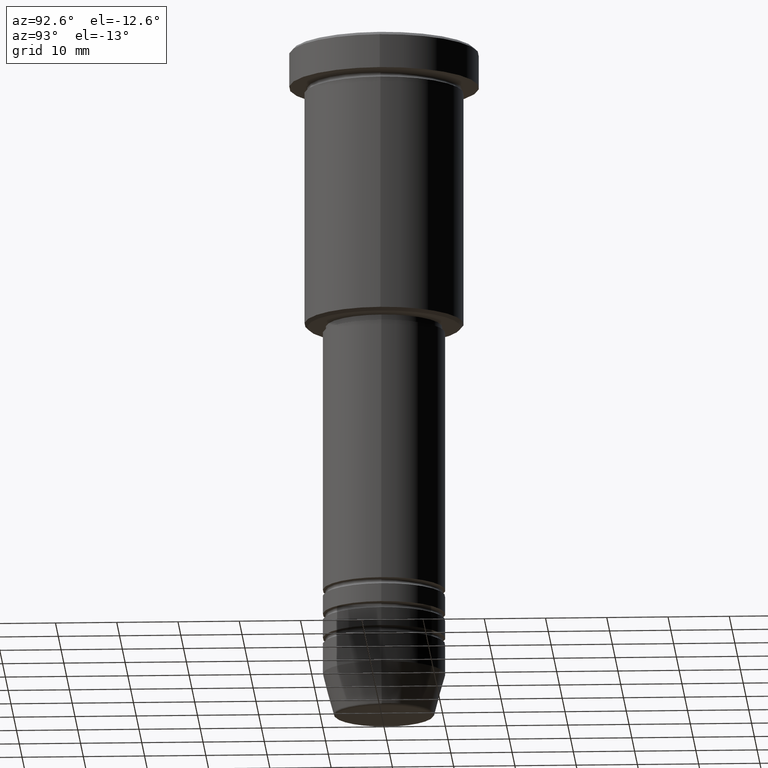
[diagram: clean part render]
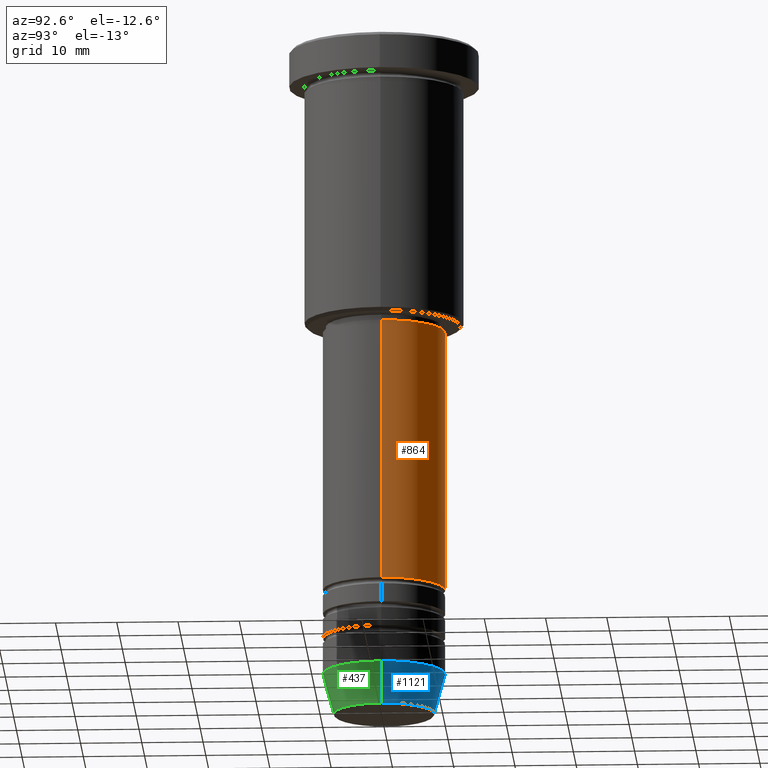
[diagram: same view with three faces highlighted in distinct colors, each labeled with its STEP entity id]
A machine part, auxiliary view with three faces highlighted in distinct colors.
Their STEP definitions:

[orange] entity #864 — the highlighted cylindrical surface (partial cylindrical patch) has radius 10 mm, axis along (-0, -0, 1).
#5 = DIRECTION ( 'NONE',  ( 1.000000000000000000, 0.000000000000000000, 0.000000000000000000 ) ) ;
#17 = DIRECTION ( 'NONE',  ( -0.000000000000000000, -0.000000000000000000, 1.000000000000000000 ) ) ;
#30 = DIRECTION ( 'NONE',  ( 1.000000000000000000, 0.000000000000000000, 0.000000000000000000 ) ) ;
#46 = LINE ( 'NONE', #946, #995 ) ;
#185 = DIRECTION ( 'NONE',  ( -0.000000000000000000, -0.000000000000000000, 1.000000000000000000 ) ) ;
#214 = ORIENTED_EDGE ( 'NONE', *, *, #996, .T. ) ;
#217 = DIRECTION ( 'NONE',  ( -0.000000000000000000, -0.000000000000000000, 1.000000000000000000 ) ) ;
#247 = EDGE_CURVE ( 'NONE', #740, #839, #288, .T. ) ;
#251 = EDGE_LOOP ( 'NONE', ( #980, #214, #920, #873 ) ) ;
#288 = CIRCLE ( 'NONE', #938, 10.00000000000000178 ) ;
#398 = DIRECTION ( 'NONE',  ( 1.000000000000000000, 0.000000000000000000, 0.000000000000000000 ) ) ;
#439 = CARTESIAN_POINT ( 'NONE',  ( 10.00000000000000178, 0.000000000000000000, -89.99999999999990052 ) ) ;
#455 = EDGE_CURVE ( 'NONE', #461, #786, #923, .T. ) ;
#461 = VERTEX_POINT ( 'NONE', #1010 ) ;
#468 = VECTOR ( 'NONE', #185, 1000.000000000000000 ) ;
#557 = FACE_OUTER_BOUND ( 'NONE', #251, .T. ) ;
#564 = AXIS2_PLACEMENT_3D ( 'NONE', #727, #217, #30 ) ;
#635 = CARTESIAN_POINT ( 'NONE',  ( 0.000000000000000000, 0.000000000000000000, -46.99999999999999289 ) ) ;
#727 = CARTESIAN_POINT ( 'NONE',  ( 0.000000000000000000, 0.000000000000000000, 0.000000000000000000 ) ) ;
#740 = VERTEX_POINT ( 'NONE', #439 ) ;
#749 = CARTESIAN_POINT ( 'NONE',  ( -10.00000000000000178, 1.224646799147353454E-15, -89.99999999999990052 ) ) ;
#759 = DIRECTION ( 'NONE',  ( -0.000000000000000000, -0.000000000000000000, 1.000000000000000000 ) ) ;
#767 = CARTESIAN_POINT ( 'NONE',  ( 0.000000000000000000, 0.000000000000000000, -89.99999999999990052 ) ) ;
#786 = VERTEX_POINT ( 'NONE', #1047 ) ;
#810 = CYLINDRICAL_SURFACE ( 'NONE', #564, 10.00000000000000000 ) ;
#839 = VERTEX_POINT ( 'NONE', #749 ) ;
#840 = EDGE_CURVE ( 'NONE', #740, #461, #1113, .T. ) ;
#864 = ADVANCED_FACE ( 'NONE', ( #557 ), #810, .T. ) ;
#873 = ORIENTED_EDGE ( 'NONE', *, *, #840, .F. ) ;
#920 = ORIENTED_EDGE ( 'NONE', *, *, #455, .F. ) ;
#923 = CIRCLE ( 'NONE', #991, 9.999999999999998224 ) ;
#938 = AXIS2_PLACEMENT_3D ( 'NONE', #767, #941, #398 ) ;
#941 = DIRECTION ( 'NONE',  ( -0.000000000000000000, -0.000000000000000000, 1.000000000000000000 ) ) ;
#946 = CARTESIAN_POINT ( 'NONE',  ( -10.00000000000000000, 1.224646799147353256E-15, 0.000000000000000000 ) ) ;
#980 = ORIENTED_EDGE ( 'NONE', *, *, #247, .T. ) ;
#991 = AXIS2_PLACEMENT_3D ( 'NONE', #635, #17, #5 ) ;
#995 = VECTOR ( 'NONE', #759, 1000.000000000000000 ) ;
#996 = EDGE_CURVE ( 'NONE', #839, #786, #46, .T. ) ;
#1004 = CARTESIAN_POINT ( 'NONE',  ( 10.00000000000000000, 0.000000000000000000, 0.000000000000000000 ) ) ;
#1010 = CARTESIAN_POINT ( 'NONE',  ( 9.999999999999998224, 0.000000000000000000, -46.99999999999999289 ) ) ;
#1047 = CARTESIAN_POINT ( 'NONE',  ( -9.999999999999998224, 1.224646799147353256E-15, -46.99999999999999289 ) ) ;
#1113 = LINE ( 'NONE', #1004, #468 ) ;

[blue] entity #1121 — the highlighted conical surface has half-angle 15 deg.
#103 = EDGE_LOOP ( 'NONE', ( #1170, #169, #392, #1126 ) ) ;
#149 = CARTESIAN_POINT ( 'NONE',  ( -10.00000000000000000, 1.224646799147353256E-15, -104.0000000000000142 ) ) ;
#169 = ORIENTED_EDGE ( 'NONE', *, *, #1172, .T. ) ;
#181 = AXIS2_PLACEMENT_3D ( 'NONE', #1045, #698, #241 ) ;
#218 = CONICAL_SURFACE ( 'NONE', #944, 10.00000000000000000, 0.2617993877991497964 ) ;
#241 = DIRECTION ( 'NONE',  ( 1.000000000000000000, 0.000000000000000000, 0.000000000000000000 ) ) ;
#258 = CARTESIAN_POINT ( 'NONE',  ( -8.223655072137189492, 1.115877042642912054E-15, -110.6294095225512848 ) ) ;
#285 = DIRECTION ( 'NONE',  ( 0.2588190451025210725, 0.000000000000000000, 0.9659258262890680902 ) ) ;
#326 = VECTOR ( 'NONE', #285, 1000.000000000000114 ) ;
#344 = VERTEX_POINT ( 'NONE', #1118 ) ;
#361 = DIRECTION ( 'NONE',  ( 1.000000000000000000, 0.000000000000000000, 0.000000000000000000 ) ) ;
#369 = DIRECTION ( 'NONE',  ( 1.000000000000000000, 0.000000000000000000, 0.000000000000000000 ) ) ;
#392 = ORIENTED_EDGE ( 'NONE', *, *, #973, .F. ) ;
#394 = DIRECTION ( 'NONE',  ( -0.000000000000000000, -0.000000000000000000, 1.000000000000000000 ) ) ;
#429 = VERTEX_POINT ( 'NONE', #258 ) ;
#464 = FACE_OUTER_BOUND ( 'NONE', #103, .T. ) ;
#473 = EDGE_CURVE ( 'NONE', #344, #429, #512, .T. ) ;
#512 = CIRCLE ( 'NONE', #1013, 8.223655072137189492 ) ;
#537 = CIRCLE ( 'NONE', #181, 10.00000000000000000 ) ;
#550 = CARTESIAN_POINT ( 'NONE',  ( 0.000000000000000000, 0.000000000000000000, -104.0000000000000142 ) ) ;
#561 = EDGE_CURVE ( 'NONE', #344, #599, #914, .T. ) ;
#599 = VERTEX_POINT ( 'NONE', #661 ) ;
#648 = CARTESIAN_POINT ( 'NONE',  ( 0.000000000000000000, 0.000000000000000000, -110.6294095225512848 ) ) ;
#661 = CARTESIAN_POINT ( 'NONE',  ( 10.00000000000000000, 0.000000000000000000, -104.0000000000000142 ) ) ;
#663 = VECTOR ( 'NONE', #724, 1000.000000000000114 ) ;
#698 = DIRECTION ( 'NONE',  ( -0.000000000000000000, -0.000000000000000000, 1.000000000000000000 ) ) ;
#711 = VERTEX_POINT ( 'NONE', #149 ) ;
#724 = DIRECTION ( 'NONE',  ( -0.2588190451025210725, 3.169619151431769255E-17, 0.9659258262890680902 ) ) ;
#794 = DIRECTION ( 'NONE',  ( -0.000000000000000000, -0.000000000000000000, 1.000000000000000000 ) ) ;
#833 = CARTESIAN_POINT ( 'NONE',  ( 10.00000000000000000, 0.000000000000000000, -104.0000000000000142 ) ) ;
#914 = LINE ( 'NONE', #833, #326 ) ;
#944 = AXIS2_PLACEMENT_3D ( 'NONE', #550, #794, #361 ) ;
#973 = EDGE_CURVE ( 'NONE', #599, #711, #537, .T. ) ;
#1013 = AXIS2_PLACEMENT_3D ( 'NONE', #648, #394, #369 ) ;
#1045 = CARTESIAN_POINT ( 'NONE',  ( 0.000000000000000000, 0.000000000000000000, -104.0000000000000142 ) ) ;
#1066 = LINE ( 'NONE', #1073, #663 ) ;
#1073 = CARTESIAN_POINT ( 'NONE',  ( -10.00000000000000000, 1.224646799147353256E-15, -104.0000000000000142 ) ) ;
#1118 = CARTESIAN_POINT ( 'NONE',  ( 8.223655072137189492, 0.000000000000000000, -110.6294095225512848 ) ) ;
#1121 = ADVANCED_FACE ( 'NONE', ( #464 ), #218, .T. ) ;
#1126 = ORIENTED_EDGE ( 'NONE', *, *, #561, .F. ) ;
#1170 = ORIENTED_EDGE ( 'NONE', *, *, #473, .T. ) ;
#1172 = EDGE_CURVE ( 'NONE', #429, #711, #1066, .T. ) ;

[green] entity #437 — the highlighted conical surface has half-angle 15 deg.
#63 = CIRCLE ( 'NONE', #124, 10.00000000000000000 ) ;
#85 = CARTESIAN_POINT ( 'NONE',  ( 0.000000000000000000, 0.000000000000000000, -110.6294095225512848 ) ) ;
#88 = CARTESIAN_POINT ( 'NONE',  ( 0.000000000000000000, 0.000000000000000000, -104.0000000000000142 ) ) ;
#124 = AXIS2_PLACEMENT_3D ( 'NONE', #88, #633, #266 ) ;
#149 = CARTESIAN_POINT ( 'NONE',  ( -10.00000000000000000, 1.224646799147353256E-15, -104.0000000000000142 ) ) ;
#170 = FACE_OUTER_BOUND ( 'NONE', #322, .T. ) ;
#202 = AXIS2_PLACEMENT_3D ( 'NONE', #85, #602, #968 ) ;
#258 = CARTESIAN_POINT ( 'NONE',  ( -8.223655072137189492, 1.115877042642912054E-15, -110.6294095225512848 ) ) ;
#266 = DIRECTION ( 'NONE',  ( 1.000000000000000000, 0.000000000000000000, 0.000000000000000000 ) ) ;
#285 = DIRECTION ( 'NONE',  ( 0.2588190451025210725, 0.000000000000000000, 0.9659258262890680902 ) ) ;
#322 = EDGE_LOOP ( 'NONE', ( #1180, #514, #901, #730 ) ) ;
#326 = VECTOR ( 'NONE', #285, 1000.000000000000114 ) ;
#344 = VERTEX_POINT ( 'NONE', #1118 ) ;
#429 = VERTEX_POINT ( 'NONE', #258 ) ;
#437 = ADVANCED_FACE ( 'NONE', ( #170 ), #1024, .T. ) ;
#457 = DIRECTION ( 'NONE',  ( 1.000000000000000000, 0.000000000000000000, 0.000000000000000000 ) ) ;
#466 = AXIS2_PLACEMENT_3D ( 'NONE', #524, #877, #457 ) ;
#506 = EDGE_CURVE ( 'NONE', #429, #344, #793, .T. ) ;
#514 = ORIENTED_EDGE ( 'NONE', *, *, #506, .T. ) ;
#524 = CARTESIAN_POINT ( 'NONE',  ( 0.000000000000000000, 0.000000000000000000, -104.0000000000000142 ) ) ;
#561 = EDGE_CURVE ( 'NONE', #344, #599, #914, .T. ) ;
#599 = VERTEX_POINT ( 'NONE', #661 ) ;
#602 = DIRECTION ( 'NONE',  ( -0.000000000000000000, -0.000000000000000000, 1.000000000000000000 ) ) ;
#633 = DIRECTION ( 'NONE',  ( -0.000000000000000000, -0.000000000000000000, 1.000000000000000000 ) ) ;
#661 = CARTESIAN_POINT ( 'NONE',  ( 10.00000000000000000, 0.000000000000000000, -104.0000000000000142 ) ) ;
#663 = VECTOR ( 'NONE', #724, 1000.000000000000114 ) ;
#711 = VERTEX_POINT ( 'NONE', #149 ) ;
#724 = DIRECTION ( 'NONE',  ( -0.2588190451025210725, 3.169619151431769255E-17, 0.9659258262890680902 ) ) ;
#730 = ORIENTED_EDGE ( 'NONE', *, *, #1090, .F. ) ;
#793 = CIRCLE ( 'NONE', #202, 8.223655072137189492 ) ;
#833 = CARTESIAN_POINT ( 'NONE',  ( 10.00000000000000000, 0.000000000000000000, -104.0000000000000142 ) ) ;
#877 = DIRECTION ( 'NONE',  ( -0.000000000000000000, -0.000000000000000000, 1.000000000000000000 ) ) ;
#901 = ORIENTED_EDGE ( 'NONE', *, *, #561, .T. ) ;
#914 = LINE ( 'NONE', #833, #326 ) ;
#968 = DIRECTION ( 'NONE',  ( 1.000000000000000000, 0.000000000000000000, 0.000000000000000000 ) ) ;
#1024 = CONICAL_SURFACE ( 'NONE', #466, 10.00000000000000000, 0.2617993877991497964 ) ;
#1066 = LINE ( 'NONE', #1073, #663 ) ;
#1073 = CARTESIAN_POINT ( 'NONE',  ( -10.00000000000000000, 1.224646799147353256E-15, -104.0000000000000142 ) ) ;
#1090 = EDGE_CURVE ( 'NONE', #711, #599, #63, .T. ) ;
#1118 = CARTESIAN_POINT ( 'NONE',  ( 8.223655072137189492, 0.000000000000000000, -110.6294095225512848 ) ) ;
#1172 = EDGE_CURVE ( 'NONE', #429, #711, #1066, .T. ) ;
#1180 = ORIENTED_EDGE ( 'NONE', *, *, #1172, .F. ) ;